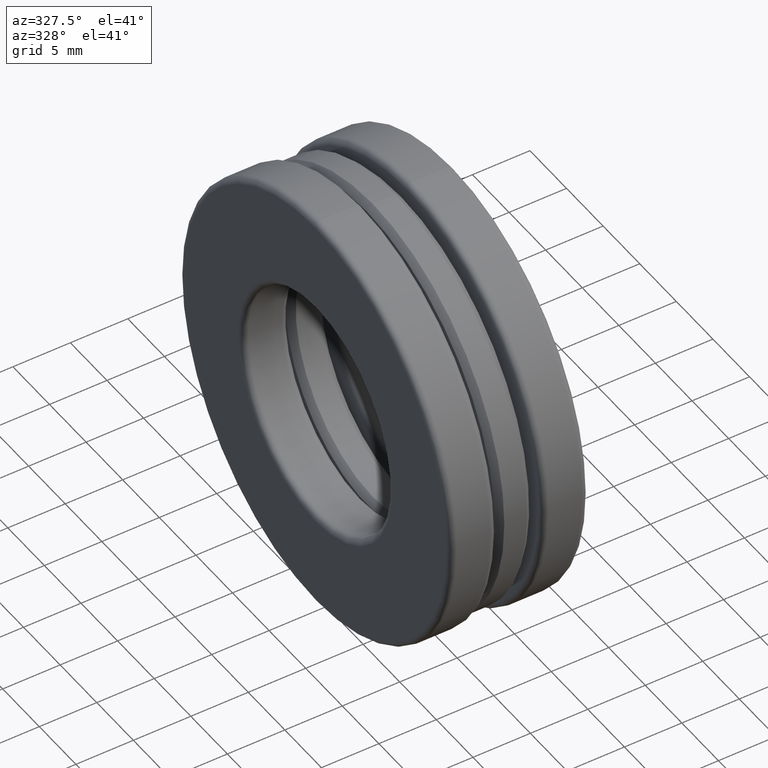
[diagram: clean part render]
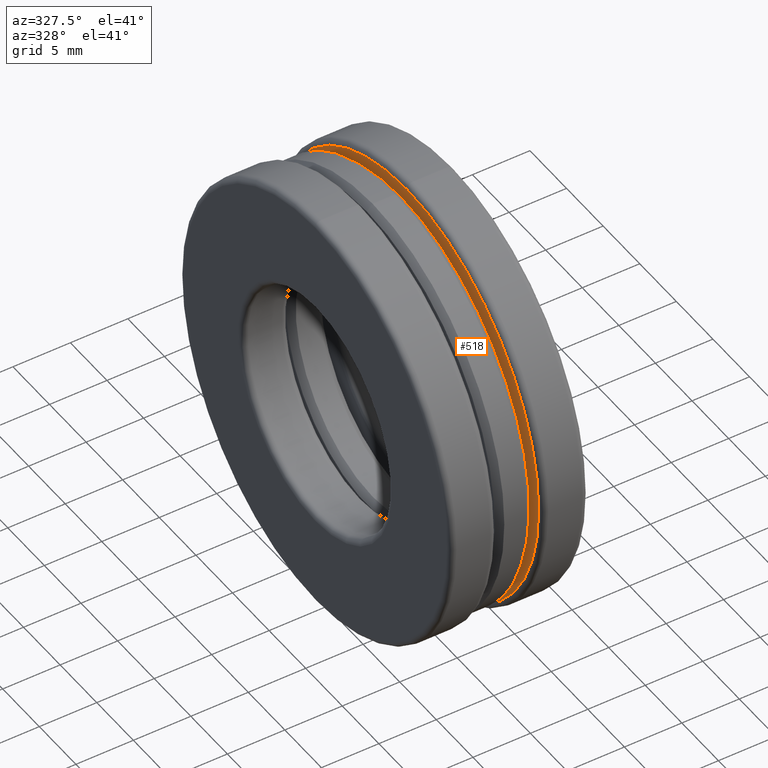
[diagram: same view with one face highlighted and labeled with its STEP entity id]
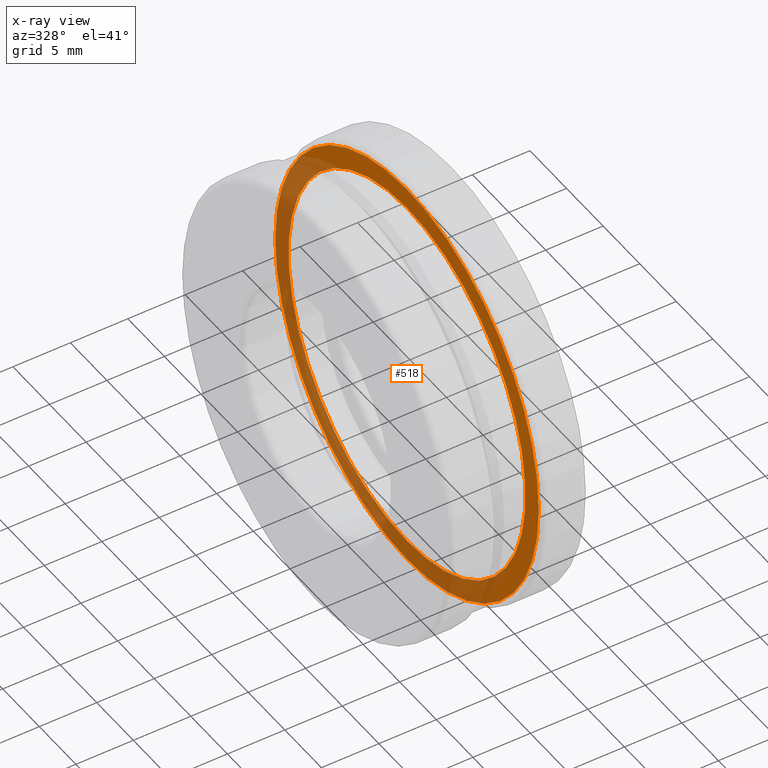
[diagram: x-ray of the same camera — body ghosted, the highlighted face saturated]
A machine part, auxiliary view. The second image highlights one B-rep face of the part: STEP entity #518.
The next image is the same camera in x-ray: the body ghosted, the highlighted face saturated — about 51% of this face is hidden behind the body in this view.
In plain terms, the highlighted planar face has unit normal (1, 0, 0).
Its self-contained STEP definition (entity closure, byte-faithful):
#8 = ORIENTED_EDGE ( 'NONE', *, *, #449, .T. ) ;
#20 = DIRECTION ( 'NONE',  ( 0.0000000000000000000, 0.0000000000000000000, 1.000000000000000000 ) ) ;
#26 = FACE_BOUND ( 'NONE', #426, .T. ) ;
#96 = CARTESIAN_POINT ( 'NONE',  ( 0.07866824000000027800, 0.0000000000000000000, 0.0000000000000000000 ) ) ;
#104 = DIRECTION ( 'NONE',  ( -1.000000000000000000, -0.0000000000000000000, -0.0000000000000000000 ) ) ;
#113 = DIRECTION ( 'NONE',  ( 1.000000000000000000, 0.0000000000000000000, 0.0000000000000000000 ) ) ;
#170 = VERTEX_POINT ( 'NONE', #253 ) ;
#208 = DIRECTION ( 'NONE',  ( -1.000000000000000000, -0.0000000000000000000, -0.0000000000000000000 ) ) ;
#220 = AXIS2_PLACEMENT_3D ( 'NONE', #96, #104, #281 ) ;
#243 = EDGE_CURVE ( 'NONE', #424, #424, #756, .T. ) ;
#253 = CARTESIAN_POINT ( 'NONE',  ( 0.07866824000000027800, 0.0000000000000000000, 0.7085000000000002400 ) ) ;
#280 = ORIENTED_EDGE ( 'NONE', *, *, #243, .F. ) ;
#281 = DIRECTION ( 'NONE',  ( 0.0000000000000000000, 0.0000000000000000000, 1.000000000000000000 ) ) ;
#293 = PLANE ( 'NONE',  #394 ) ;
#394 = AXIS2_PLACEMENT_3D ( 'NONE', #618, #113, #753 ) ;
#424 = VERTEX_POINT ( 'NONE', #575 ) ;
#426 = EDGE_LOOP ( 'NONE', ( #280 ) ) ;
#449 = EDGE_CURVE ( 'NONE', #170, #170, #458, .T. ) ;
#458 = CIRCLE ( 'NONE', #220, 0.7085000000000002400 ) ;
#475 = EDGE_LOOP ( 'NONE', ( #8 ) ) ;
#507 = AXIS2_PLACEMENT_3D ( 'NONE', #727, #208, #20 ) ;
#518 = ADVANCED_FACE ( 'NONE', ( #26, #683 ), #293, .F. ) ;
#575 = CARTESIAN_POINT ( 'NONE',  ( 0.07866824000000029200, 0.0000000000000000000, 0.6371679592433876500 ) ) ;
#618 = CARTESIAN_POINT ( 'NONE',  ( 0.07866824000000029200, 2.276585525520125600E-017, 0.0000000000000000000 ) ) ;
#683 = FACE_OUTER_BOUND ( 'NONE', #475, .T. ) ;
#727 = CARTESIAN_POINT ( 'NONE',  ( 0.07866824000000029200, 0.0000000000000000000, 0.0000000000000000000 ) ) ;
#753 = DIRECTION ( 'NONE',  ( 0.0000000000000000000, 0.0000000000000000000, -1.000000000000000000 ) ) ;
#756 = CIRCLE ( 'NONE', #507, 0.6371679592433876500 ) ;